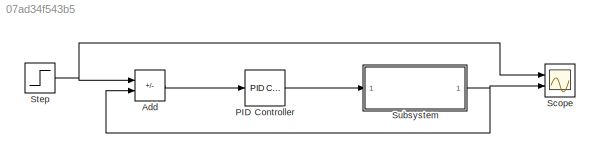
MODEL slx_07ad34f543b5
KIND model
CONFIG AbsTol = auto
CONFIG EnableMultiTasking = off
CONFIG FixedStep = auto
CONFIG MaxStep = auto
CONFIG MinStep = auto
CONFIG RelTol = 1e-3
CONFIG SampleTimeConstraint = Unconstrained
CONFIG SolverName = VariableStepAuto
CONFIG StartTime = 0.0
CONFIG StopTime = 10.0
BLOCK [Sum] Add
  IconShape = rectangular
  Inputs = +-
  Ports = [2, 1]
BLOCK [Reference] PID Controller  REF=pid_lib/PID Controller
  Ports = [1, 1]
  SourceBlock = pid_lib/PID Controller
  SourceProductBaseCode = SL
  SourceType = PID 1dof
BLOCK [Scope] Scope
  Floating = off
  NumInputPorts = 2
  Ports = [2]
  ScopeSpecificationString = Simulink.scopes.TimeScopeBlockCfg('CurrentConfiguration', extmgr.ConfigurationSet(extmgr.Configuration('Core','General UI',true),extmgr.Configuration('Core','Source UI',true),extmgr.Configuration('Sources','WiredSimulink',true),extmgr.Configuration('Visuals','Time Domain',true,'SerializedDisplays',{struct('MinYLimReal','-187.5','MaxYLimReal','1687.5','YLabelReal','','MinYLimMag',' 0.00000','MaxYLi...<+2001ch>
BLOCK [Step] Step
  After = 1500
  SampleTime = 0
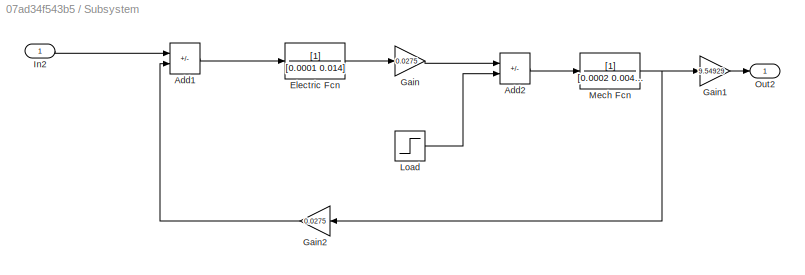
BLOCK [SubSystem] Subsystem
  Ports = [1, 1]
  RequestExecContextInheritance = off
BLOCK [Sum] Subsystem/Add1
  IconShape = rectangular
  Inputs = +-
  Ports = [2, 1]
BLOCK [Sum] Subsystem/Add2
  IconShape = rectangular
  Inputs = +-
  Ports = [2, 1]
BLOCK [TransferFcn] Subsystem/Electric Fcn
  Denominator = [0.0001 0.014]
BLOCK [Gain] Subsystem/Gain
  Gain = 0.0275
BLOCK [Gain] Subsystem/Gain1
  Gain = 9.54929
BLOCK [Gain] Subsystem/Gain2
  Gain = 0.0275
  NameLocation = top
BLOCK [Inport] Subsystem/In2
BLOCK [Step] Subsystem/Load
  After = 10
  SampleTime = 0
BLOCK [TransferFcn] Subsystem/Mech Fcn
  Denominator = [0.0002 0.004585]
BLOCK [Outport] Subsystem/Out2
LINE Add:1 -> PID Controller:1
LINE PID Controller:1 -> Subsystem:1
NET Step:1 -> Add:1, Scope:1
LINE Subsystem/Add1:1 -> Subsystem/Electric Fcn:1
LINE Subsystem/Add2:1 -> Subsystem/Mech Fcn:1
LINE Subsystem/Electric Fcn:1 -> Subsystem/Gain:1
LINE Subsystem/Gain1:1 -> Subsystem/Out2:1
LINE Subsystem/Gain2:1 -> Subsystem/Add1:2
LINE Subsystem/Gain:1 -> Subsystem/Add2:1
LINE Subsystem/In2:1 -> Subsystem/Add1:1
LINE Subsystem/Load:1 -> Subsystem/Add2:2
NET Subsystem/Mech Fcn:1 -> Subsystem/Gain1:1, Subsystem/Gain2:1
NET Subsystem:1 -> Add:2, Scope:2
note: NET lines group one-source signal fan-out (src -> all destinations, sorted); 1:1 wires keep LINE
